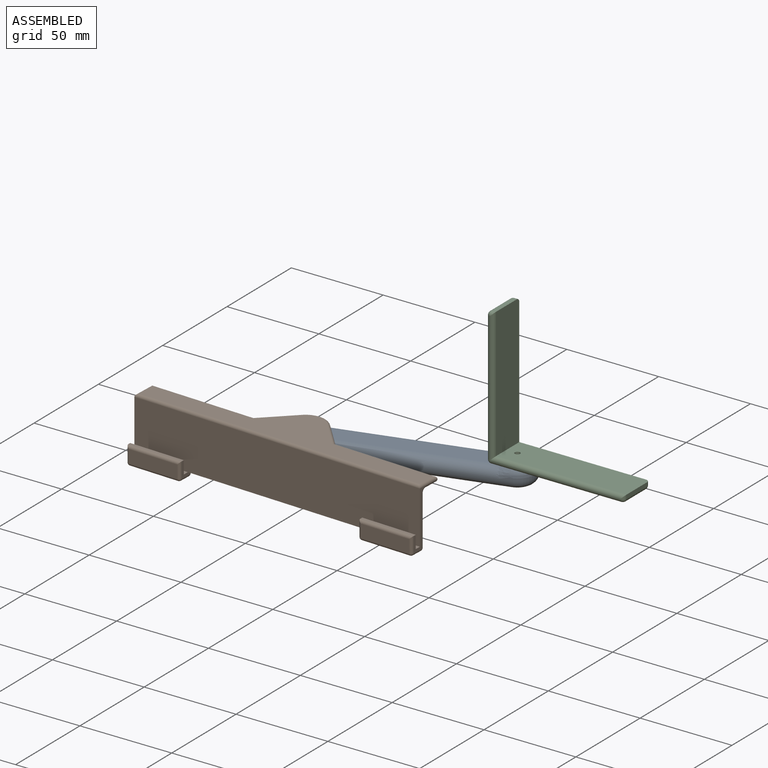
[diagram: assembled view]
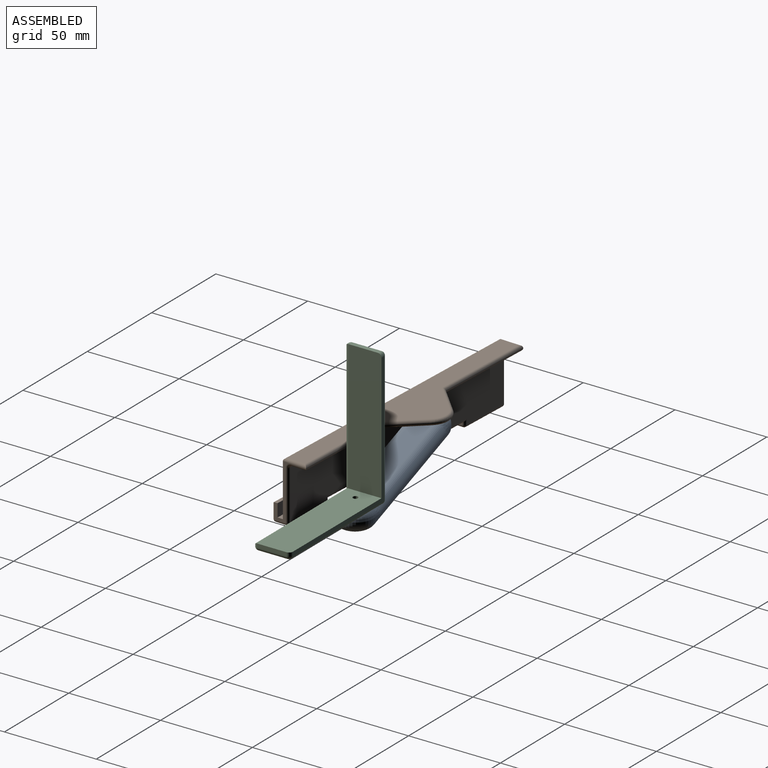
[diagram: assembled view, second angle]
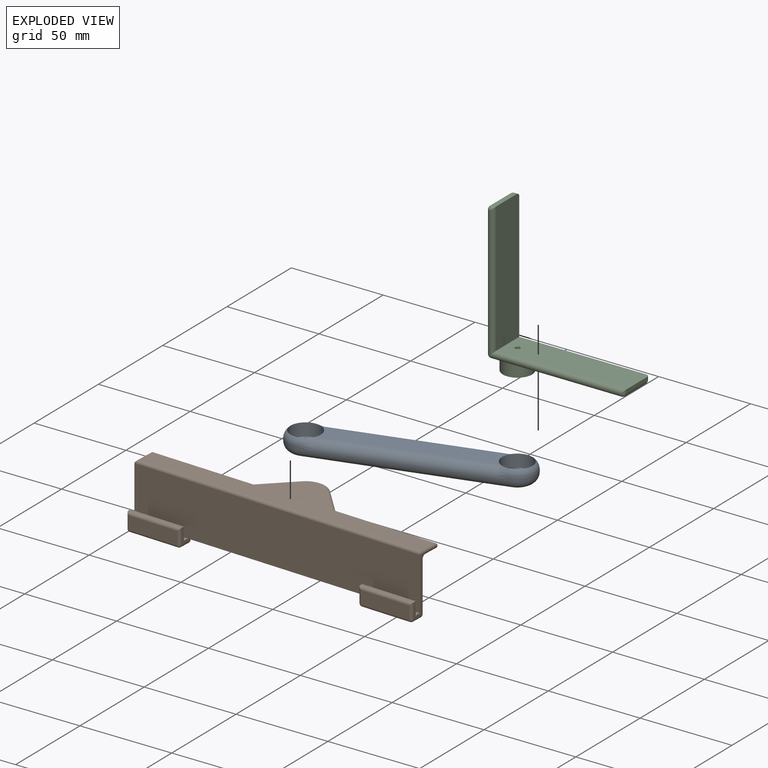
[diagram: exploded view]
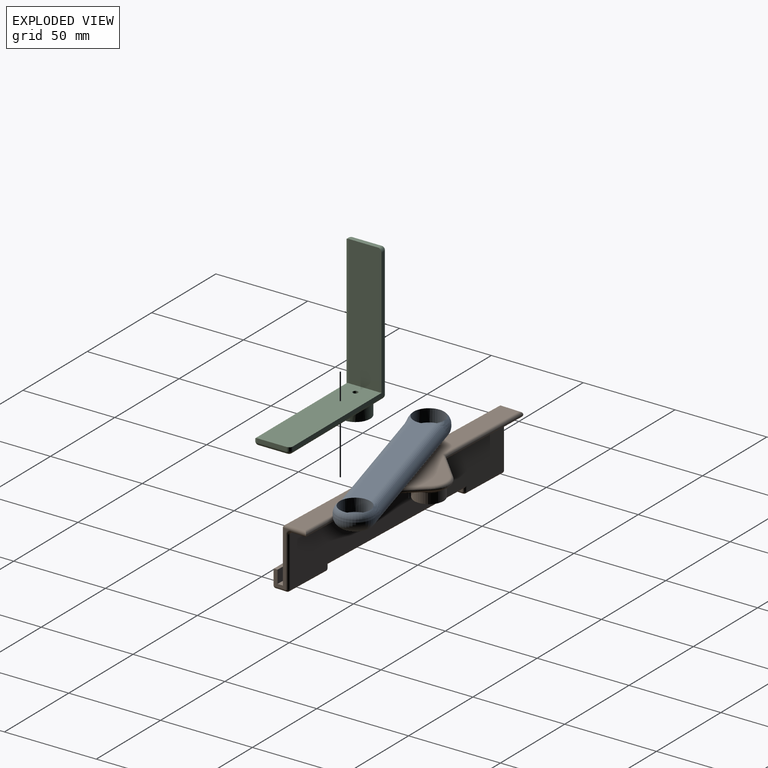
[diagram: exploded view, second angle]
ASSEMBLY  parts=3 mates=2
PART A: 28 faces, bbox 121.6x21.6x11.2 mm
  f0: plane 110x10mm, normal (0,0,-1), area 1022mm2, adj f18,f21,f22,f23,f24,f26
  f1: cylinder r=1.4mm len=2.8mm, axis (0,0,1), area 8.8mm2, adj f11,f27
  f2: cylinder r=1.4mm len=2.8mm, axis (0,0,1), area 8.8mm2, adj f13,f25
  f3: plane 6.57x1.2mm, normal (0,1,0), area 3.8mm2, adj f8,f15,f18
  f4: plane 6.57x1.2mm, normal (0,-1,0), area 3.8mm2, adj f6,f20,f22
  f5: plane 6.57x1.2mm, normal (0,-1,0), area 3.8mm2, adj f8,f19,f22
  f6: cylinder r=10mm len=20mm, axis (0,0,-1), area 37.7mm2, adj f4,f7,f17,f23
  f7: plane 6.57x1.2mm, normal (0,1,0), area 3.8mm2, adj f6,f14,f18
  f8: cylinder r=10mm len=20mm, axis (0,0,-1), area 37.7mm2, adj f3,f5,f16,f21
  f9: plane 86.88x10mm, normal (0,0,1), area 845.7mm2, adj f10,f12,f18,f22
  f10: cylinder r=8.25mm len=16.5mm, axis (0,0,1), area 362.9mm2, adj f9,f11,f14,f17,f20
  f11: plane 16.5x16.5mm, normal (0,0,1), area 207.7mm2, adj f1,f10
  f12: cylinder r=8.25mm len=16.5mm, axis (0,0,1), area 362.9mm2, adj f9,f13,f15,f16,f19
  f13: plane 16.5x16.5mm, normal (0,0,1), area 207.7mm2, adj f2,f12
  f14: bspline ~9.42x5.51mm, area 36.5mm2, adj f7,f10,f17,f18
  f15: bspline ~9.42x5.51mm, area 36.5mm2, adj f3,f12,f16,f18
  f16: torus R=5mm, axis (0,0,1), area 127.5mm2, adj f8,f12,f15,f19
  f17: torus R=5mm, axis (0,0,1), area 127.5mm2, adj f6,f10,f14,f20
  f18: cylinder r=5mm len=100mm, axis (1,0,0), area 1467.7mm2, adj f0,f3,f7,f9,f14,f15,f21,f23
  f19: bspline ~8.52x5.51mm, area 36.5mm2, adj f5,f12,f16,f22
  f20: bspline ~8.52x5.51mm, area 36.5mm2, adj f4,f10,f17,f22
  f21: torus R=5mm, axis (0,0,1), area 201.9mm2, adj f0,f8,f18,f22
  f22: cylinder r=5mm len=100mm, axis (-1,0,0), area 1467.7mm2, adj f0,f4,f5,f9,f19,f20,f21,f23
  f23: torus R=5mm, axis (0,0,1), area 201.9mm2, adj f0,f6,f18,f22
  f24: cylinder r=3mm len=6mm, axis (0,0,-1), area 37.7mm2, adj f0,f25
  f25: plane 6x6mm, normal (0,0,-1), area 22.1mm2, adj f2,f24
  f26: cylinder r=3mm len=6mm, axis (0,0,-1), area 37.7mm2, adj f0,f27
  f27: plane 6x6mm, normal (0,0,-1), area 22.1mm2, adj f1,f26
PART B: 62 faces, bbox 160x38.9x33 mm
  f0: plane 100x1.5mm, normal (0,0,1), area 150mm2, adj f6,f12,f15,f49
  f1: plane 30x9mm, normal (-1,0,0), area 64.2mm2, adj f6,f11,f17,f18,f26,f31,f34,f35
  f2: plane 30x9mm, normal (1,0,0), area 64.2mm2, adj f6,f14,f20,f21,f41,f46,f48,f53
  f3: plane 157x23.08mm, normal (0,0,1), area 1311.8mm2, adj f23,f24,f28,f29,f31,f36,f41,f44
  f4: plane 157x29mm, normal (0,0,-1), area 2066.3mm2, adj f24,f25,f28,f29,f31,f36,f37,f41
  f5: plane 157x27mm, normal (0,1,0), area 3930mm2, adj f35,f43,f44,f47,f48,f49,f51,f52
  f6: plane 160x28.5mm, normal (0,-1,0), area 4560mm2, adj f0,f1,f2,f11,f14,f37
  f7: cylinder r=1.4mm len=7mm, axis (0,0,-1), area 61.6mm2, adj f9,f10
  f8: cylinder r=8mm len=16mm, axis (0,0,-1), area 276.5mm2, adj f9,f23
  f9: plane 16x16mm, normal (0,0,1), area 194.9mm2, adj f7,f8
  f10: plane 2.8x2.8mm, normal (0,0,1), area 6.2mm2, adj f7
  f11: plane 30x3mm, normal (0,0,-1), area 90mm2, adj f1,f6,f12,f17
  f12: plane 8.5x6mm, normal (1,0,0), area 19.5mm2, adj f0,f11,f17,f18,f32,f42,f47
  f13: plane 27x6mm, normal (0,0,1), area 162mm2, adj f33,f34,f42,f43
  f14: plane 30x3mm, normal (0,0,-1), area 90mm2, adj f2,f6,f15,f20
  f15: plane 8.5x6mm, normal (-1,0,0), area 19.5mm2, adj f0,f14,f20,f21,f51,f56,f61
  f16: plane 27x6mm, normal (0,0,1), area 162mm2, adj f52,f53,f56,f57
  f17: plane 30x7mm, normal (0,1,0), area 210mm2, adj f1,f11,f12,f18
  f18: plane 30x1.5mm, normal (0,0,-1), area 45mm2, adj f1,f12,f17,f27
  f19: plane 27x7mm, normal (0,-1,0), area 189mm2, adj f26,f27,f32,f33
  f20: plane 30x7mm, normal (0,1,0), area 210mm2, adj f2,f14,f15,f21
  f21: plane 30x1.5mm, normal (0,0,-1), area 45mm2, adj f2,f15,f20,f60
  f22: plane 27x7mm, normal (0,-1,0), area 189mm2, adj f57,f58,f60,f61
  f23: torus R=9.5mm, axis (0,0,1), area 126.5mm2, adj f3,f8,f25
  f24: cylinder r=1.5mm len=17.12mm, axis (-0.69,-0.72,0), area 103.1mm2, adj f3,f4,f25,f28
  f25: torus R=9.5mm, axis (0,0,1), area 79.4mm2, adj f4,f23,f24,f29
  f26: cylinder r=1.5mm len=8.5mm, axis (0,0,-1), area 18.7mm2, adj f1,f19,f27,f30
  f27: cylinder r=1.5mm len=30mm, axis (-1,0,0), area 68.1mm2, adj f18,f19,f26,f32
  f28: cylinder r=1.5mm len=57.71mm, axis (-1,0,0), area 267.4mm2, adj f3,f4,f24,f31
  f29: cylinder r=1.5mm len=17.12mm, axis (-0.69,0.72,0), area 103.1mm2, adj f3,f4,f25,f36
  f30: sphere r=1.5mm, area 3.5mm2, adj f26,f33,f34
  f31: cylinder r=1.5mm len=13.01mm, axis (0,-1,0), area 46.8mm2, adj f1,f3,f4,f28,f37,f40
  f32: cylinder r=1.5mm len=8.5mm, axis (0,0,1), area 18.7mm2, adj f12,f19,f27,f38
  f33: cylinder r=1.5mm len=27mm, axis (1,0,0), area 63.6mm2, adj f13,f19,f30,f38
  f34: cylinder r=1.5mm len=6mm, axis (0,1,0), area 14.1mm2, adj f1,f13,f30,f39
  f35: cylinder r=1.5mm len=27mm, axis (0,0,-1), area 63.6mm2, adj f1,f5,f39,f40
  f36: cylinder r=1.5mm len=57.71mm, axis (-1,0,0), area 267.4mm2, adj f3,f4,f29,f41
  f37: cylinder r=1.5mm len=160mm, axis (1,0,0), area 374.4mm2, adj f4,f6,f31,f41
  f38: sphere r=1.5mm, area 3.5mm2, adj f32,f33,f42
  f39: sphere r=1.5mm, area 3.5mm2, adj f34,f35,f43
  f40: torus R=3mm, axis (-1,0,0), area 7.6mm2, adj f1,f31,f35,f44
  f41: cylinder r=1.5mm len=13.01mm, axis (0,1,0), area 46.8mm2, adj f2,f3,f4,f36,f37,f46
  f42: cylinder r=1.5mm len=6mm, axis (0,-1,0), area 14.1mm2, adj f12,f13,f38,f45
  f43: cylinder r=1.5mm len=27mm, axis (1,0,0), area 63.6mm2, adj f5,f13,f39,f45
  f44: cylinder r=1.5mm len=157mm, axis (-1,0,0), area 369.9mm2, adj f3,f5,f40,f46
  f45: sphere r=1.5mm, area 3.5mm2, adj f42,f43,f47
  f46: torus R=3mm, axis (-1,0,0), area 7.6mm2, adj f2,f41,f44,f48
  f47: cylinder r=1.5mm len=3mm, axis (0,0,-1), area 4.8mm2, adj f5,f12,f45,f49
  f48: cylinder r=1.5mm len=27mm, axis (0,0,1), area 63.6mm2, adj f2,f5,f46,f50
  f49: cylinder r=1.5mm len=103mm, axis (-1,0,0), area 238.2mm2, adj f0,f5,f47,f51
  f50: sphere r=1.5mm, area 3.5mm2, adj f48,f52,f53
  f51: cylinder r=1.5mm len=3mm, axis (0,0,1), area 4.8mm2, adj f5,f15,f49,f54
  f52: cylinder r=1.5mm len=27mm, axis (1,0,0), area 63.6mm2, adj f5,f16,f50,f54
  f53: cylinder r=1.5mm len=6mm, axis (0,1,0), area 14.1mm2, adj f2,f16,f50,f55
  f54: sphere r=1.5mm, area 3.5mm2, adj f51,f52,f56
  f55: sphere r=1.5mm, area 3.5mm2, adj f53,f57,f58
  f56: cylinder r=1.5mm len=6mm, axis (0,-1,0), area 14.1mm2, adj f15,f16,f54,f59
  f57: cylinder r=1.5mm len=27mm, axis (1,0,0), area 63.6mm2, adj f16,f22,f55,f59
  f58: cylinder r=1.5mm len=8.5mm, axis (0,0,1), area 18.7mm2, adj f2,f22,f55,f60
  f59: sphere r=1.5mm, area 3.5mm2, adj f56,f57,f61
  f60: cylinder r=1.5mm len=30mm, axis (-1,0,0), area 68.1mm2, adj f21,f22,f58,f61
  f61: cylinder r=1.5mm len=8.5mm, axis (0,0,-1), area 18.7mm2, adj f15,f22,f59,f60
PART C: 29 faces, bbox 82x75x20 mm
  f0: plane 8x8mm, normal (1,0,0), area 13.7mm2, adj f21,f25,f26
  f1: plane 63x16mm, normal (1,0,0), area 907.5mm2, adj f14,f19,f21,f26
  f2: plane 71x18mm, normal (0,-1,0), area 1277.1mm2, adj f3,f7,f8,f10,f18
  f3: plane 71x18mm, normal (-1,0,0), area 1271mm2, adj f2,f4,f8,f9,f19,f28
  f4: plane 16x2mm, normal (0,-1,0), area 32mm2, adj f3,f9,f13,f14
  f5: plane 8x8mm, normal (1,0,0), area 13.7mm2, adj f19,f25,f26
  f6: plane 71x16mm, normal (0,1,0), area 1136mm2, adj f11,f18,f22,f25
  f7: plane 16x2mm, normal (-1,0,0), area 32mm2, adj f2,f10,f11,f12
  f8: plane 71x71mm, normal (0,0,1), area 280mm2, adj f2,f3,f9,f10,f21,f22
  f9: cylinder r=2mm len=2mm, axis (-1,0,0), area 6.3mm2, adj f3,f4,f8,f15
  f10: cylinder r=2mm len=2mm, axis (0,1,0), area 6.3mm2, adj f2,f7,f8,f16
  f11: cylinder r=2mm len=16mm, axis (0,0,-1), area 50.3mm2, adj f6,f7,f16,f17
  f12: cylinder r=2mm len=2mm, axis (0,-1,0), area 4mm2, adj f7,f17,f18
  f13: cylinder r=2mm len=2mm, axis (1,0,0), area 4mm2, adj f4,f19,f20
  f14: cylinder r=2mm len=16mm, axis (0,0,1), area 50.3mm2, adj f1,f4,f15,f20
  f15: sphere r=2mm, area 6.3mm2, adj f9,f14,f21
  f16: sphere r=2mm, area 6.3mm2, adj f10,f11,f22
  f17: sphere r=2mm, area 6.3mm2, adj f11,f12,f18
  f18: cylinder r=2mm len=73mm, axis (1,0,0), area 446.1mm2, adj f2,f6,f12,f17,f19,f24
  f19: cylinder r=2mm len=73mm, axis (0,-1,0), area 446.1mm2, adj f1,f3,f5,f13,f18,f20,f24
  f20: sphere r=2mm, area 6.3mm2, adj f13,f14,f19
  f21: cylinder r=2mm len=71mm, axis (0,-1,0), area 223.1mm2, adj f0,f1,f8,f15,f23
  f22: cylinder r=2mm len=71mm, axis (1,0,0), area 223.1mm2, adj f6,f8,f16,f23
  f23: sphere r=2mm, area 6.3mm2, adj f21,f22,f25
  f24: sphere r=2mm, area 6.3mm2, adj f18,f19,f25
  f25: cylinder r=2mm len=16mm, axis (0,0,1), area 50.3mm2, adj f0,f5,f6,f23,f24
  f26: cylinder r=8mm len=16mm, axis (-1,0,0), area 351.9mm2, adj f0,f1,f5,f27
  f27: plane 16x16mm, normal (1,0,0), area 194.9mm2, adj f26,f28
  f28: cylinder r=1.4mm len=11mm, axis (1,0,0), area 96.8mm2, adj f3,f27
PLACE A rot(axis=(0,0,-1),164.3deg) t=(31.9,23.18,-27.62)mm
PLACE B rot(axis=(-0.02,-1,0),180deg) t=(14.88,-25.11,-14.62)mm
PLACE C rot(axis=(-0.58,0.58,0.58),120deg) t=(25.84,13.38,57.38)mm fixed
MATE revolute C.f26 <-> A.f2  axis (0,0,1) through (31.84,23.38,-24.62)mm
MATE revolute B.f7 <-> A.f1  axis (0,0,-1) through (-64.34,-3.96,-24.62)mm
